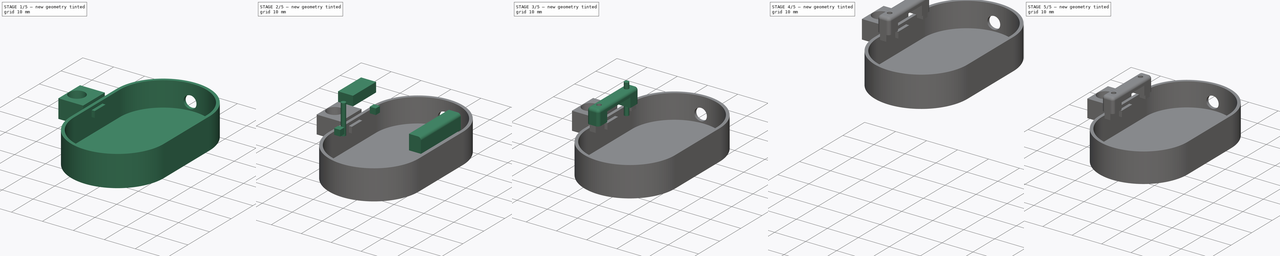
[diagram: build sequence overview — one tinted view per stage of 5, left to right]
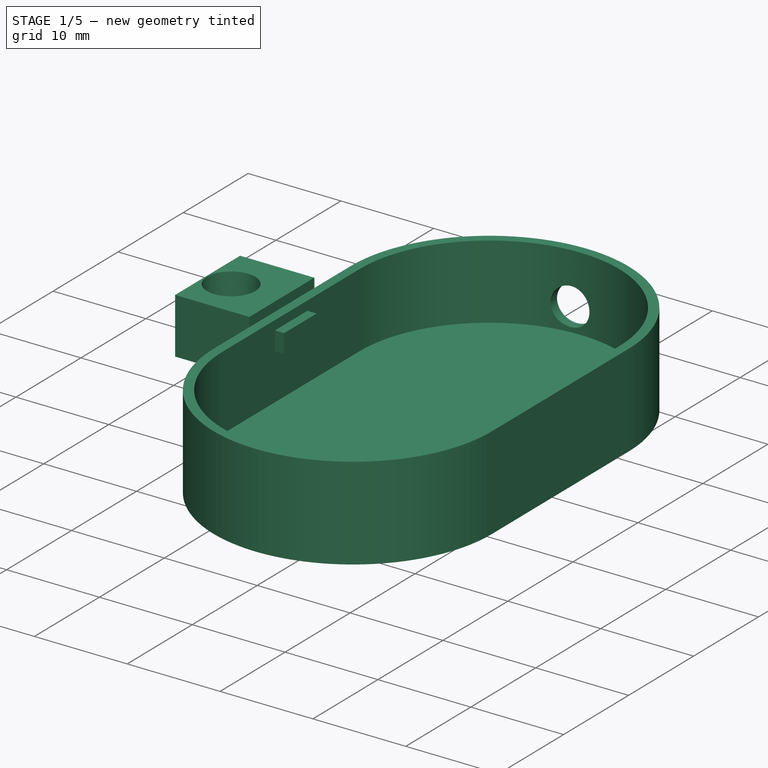
[diagram: stage 1 of 5 — iso view after this stage's code; geometry added in this stage tinted green]
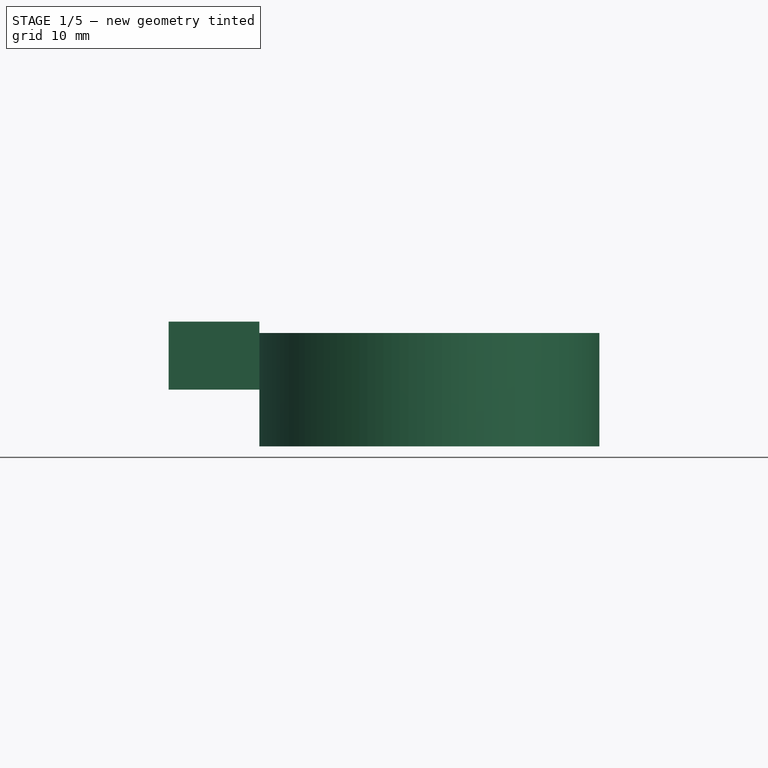
[diagram: stage 1 of 5 — front view after this stage's code; geometry added in this stage tinted green]
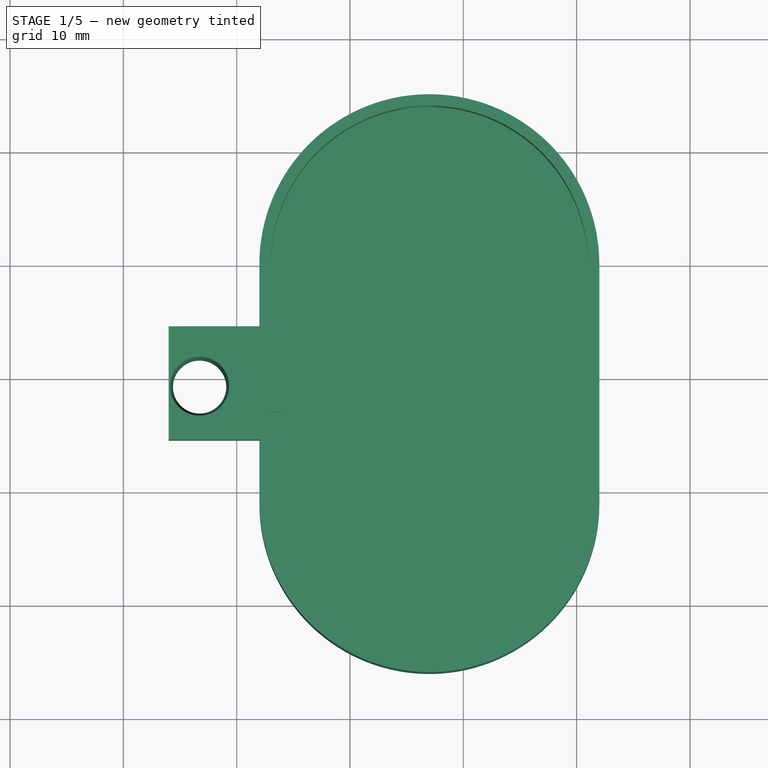
[diagram: stage 1 of 5 — top view after this stage's code; geometry added in this stage tinted green]
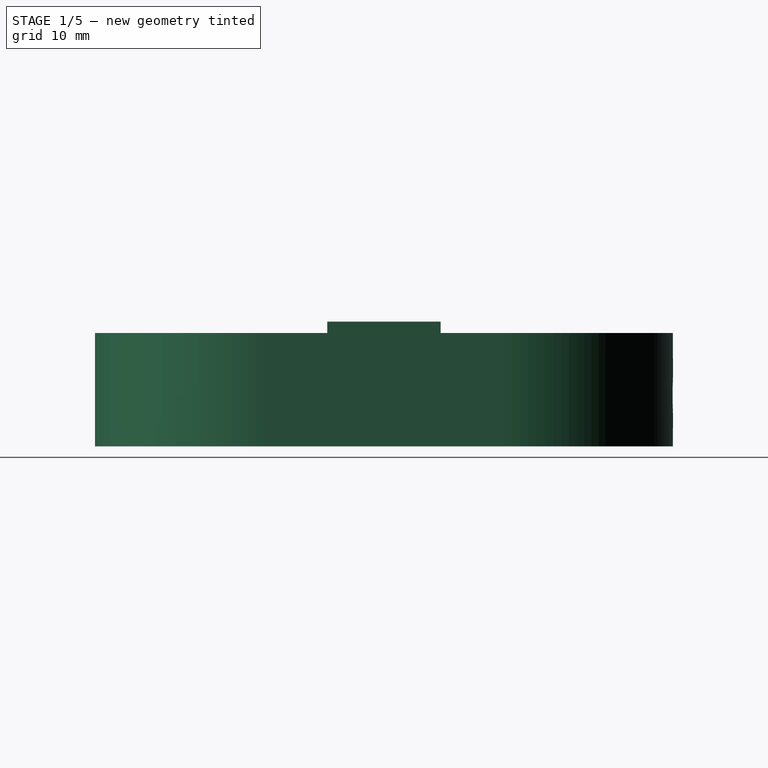
[diagram: stage 1 of 5 — right view after this stage's code; geometry added in this stage tinted green]
FCSTD DOCUMENT  (FreeCAD 0.16RUnknown)
Label: Diseño_para_Imprimir
License: All rights reserved
LicenseURL: http://en.wikipedia.org/wiki/All_rights_reserved
objects: Part::Feature×12, Part::Box×7, Part::Cut×6, Part::Cylinder×6, Part::MultiFuse×6, Part::Fillet×4, Part::Helix×1, Sketcher::SketchObject×1, Part::Sweep×1
note: 44 computed .brp shape members not serialized (recipe doc carries the construction recipe); baked Part::Feature solids carry a one-line shape summary decoded from their .brp

FEATURE [Part::Box] Box033  label="Cubo033"
  Height = 8
  Length = 6
  Placement = pos=(-13.5,-8,-5) rot=(0,1,0;1.5708rad)
  Width = 10
FEATURE [Part::Box] Box073  label="Cubo073"
  Height = 2
  Length = 2
  Placement = pos=(-28,57,41) rot=(0,0,1;0rad)
  Width = 5
FEATURE [Part::Feature] Part__Feature010  label="Agujero para rosca"
  Placement = pos=(-399.5,-80.5,-90) rot=(0,0,1;0rad)
  shape: bbox 5.23 x 5.23 x 6.4 mm, 6 faces (baked)
FEATURE [Part::Cut] Cut096004
  Base = -> Box033
  Placement = pos=(-22.5,62.5,50) rot=(0,0,1;0rad)
  Tool = -> Part__Feature010
FEATURE [Part::Feature] Fusion002019001  label="Fusion002044004"
  shape: bbox 38 x 11 x 3.2 mm, 14 faces (baked)
FEATURE [Part::Box] Box074  label="Cubo074"
  Height = 2
  Length = 2
  Placement = pos=(-28,57,41) rot=(0,0,1;0rad)
  Width = 5
FEATURE [Part::Cut] Cut096005
  Base = -> Cut093001
  Tool = -> Box073
FEATURE [Part::MultiFuse] Fusion002044003  label="Fusion002044005"
  Shapes = -> [Cut096004,Box074]
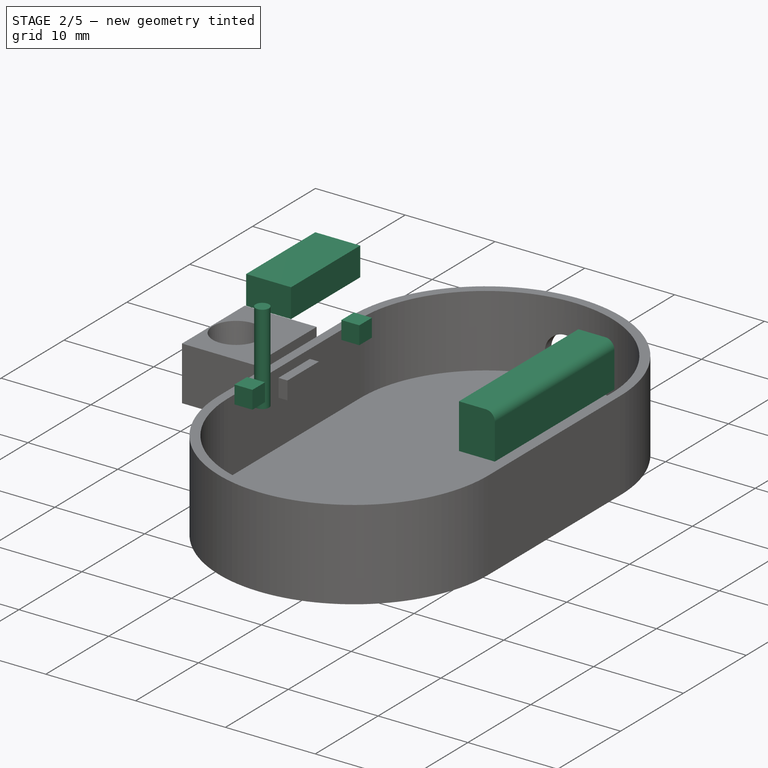
[diagram: stage 2 of 5 — iso view after this stage's code; geometry added in this stage tinted green]
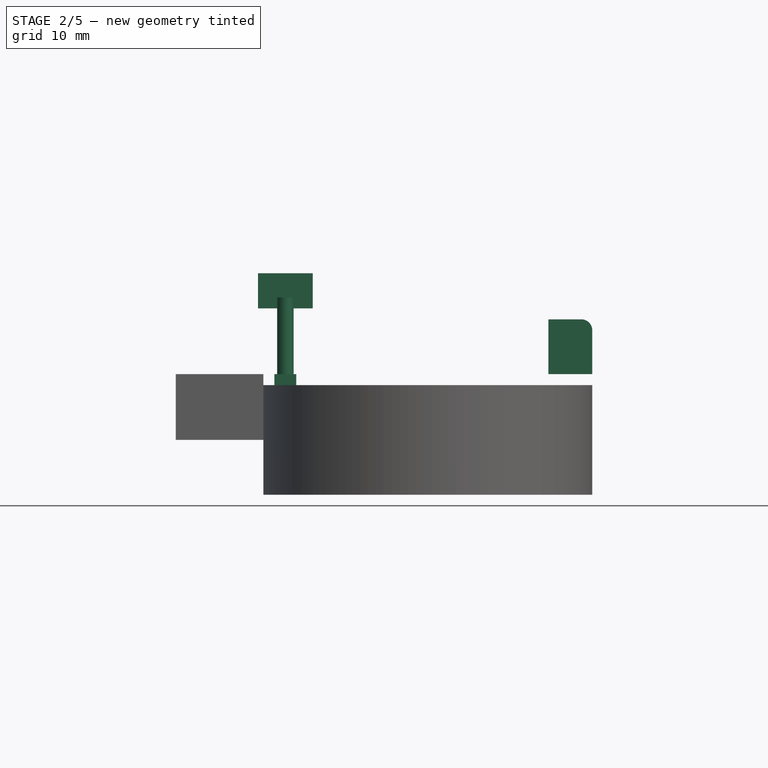
[diagram: stage 2 of 5 — front view after this stage's code; geometry added in this stage tinted green]
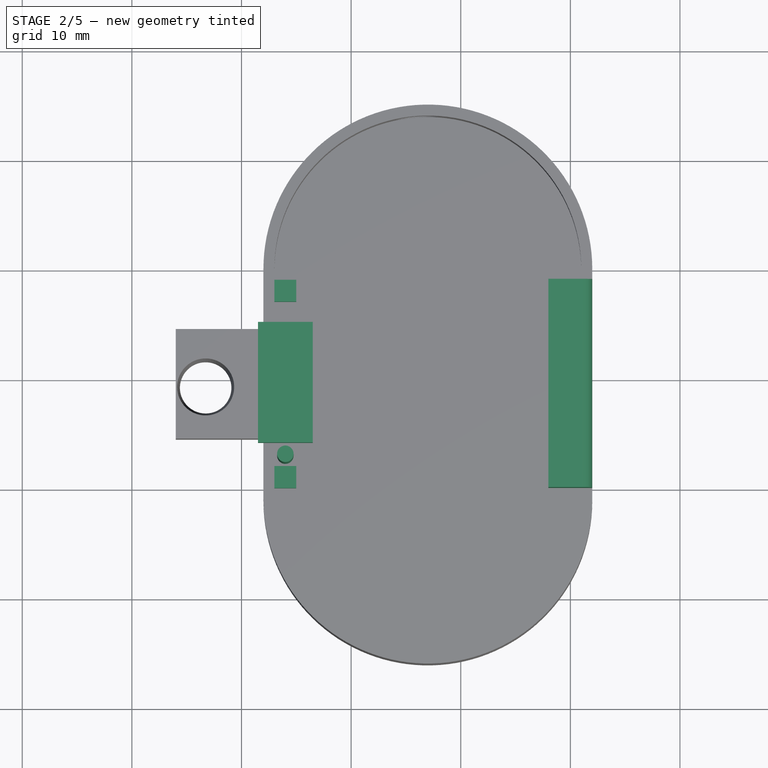
[diagram: stage 2 of 5 — top view after this stage's code; geometry added in this stage tinted green]
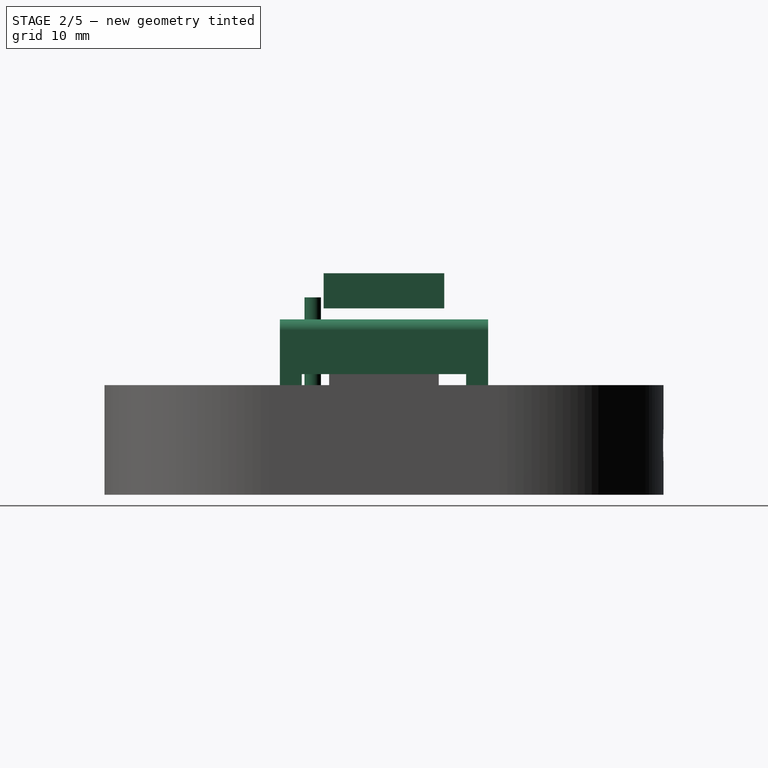
[diagram: stage 2 of 5 — right view after this stage's code; geometry added in this stage tinted green]
FEATURE [Part::Box] Box003  label="Cubo003"
  Height = 5
  Length = 4
  Placement = pos=(-2,50,45) rot=(0,0,1;0rad)
  Width = 19
FEATURE [Part::Fillet] Fillet
  Base = -> Box003
  Edges = 1 edges r=1: [Edge6]
FEATURE [Part::Box] Box038  label="Cubo038"
  Height = 3.2
  Length = 5
  Placement = pos=(-28.5,54,51) rot=(0,0,1;0rad)
  Width = 11
FEATURE [Part::Cylinder] Cylinder037  label="Cilindro037"
  Angle = 360
  Height = 10
  Placement = pos=(-26,53,42) rot=(0,0,1;0rad)
  Radius = 0.75
FEATURE [Part::Feature] Cut096001  label="Cut097"
  shape: bbox 39 x 8 x 2.545 mm, 19 faces (baked)
FEATURE [Part::Feature] Fusion002040001  label="Fusion002045"
  shape: bbox 30 x 51 x 3 mm, 18 faces (baked)
FEATURE [Part::Feature] Fusion002044001  label="Fusion002046"
  shape: bbox 20 x 43 x 6 mm, 48 faces (baked)
FEATURE [Part::Feature] Cut093001  label="Cut098"
  shape: bbox 30 x 51 x 10 mm, 12 faces (baked)
FEATURE [Part::Box] Box069  label="Cubo069"
  Height = 2
  Length = 2
  Placement = pos=(-27,67,43) rot=(0,0,1;0rad)
  Width = 2
FEATURE [Part::Box] Box070  label="Cubo070"
  Height = 2
  Length = 2
  Placement = pos=(-27,50,43) rot=(0,0,1;0rad)
  Width = 2
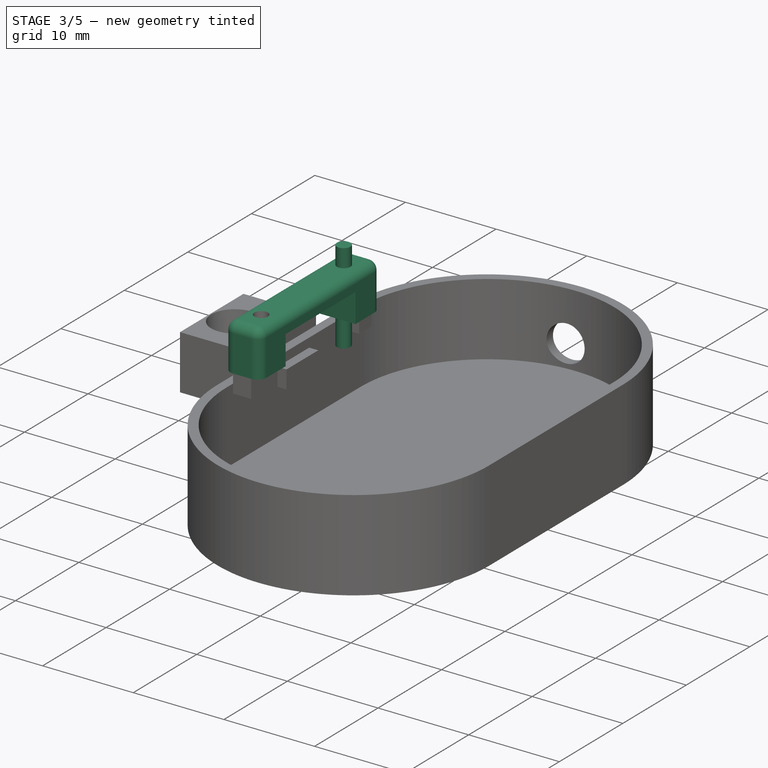
[diagram: stage 3 of 5 — iso view after this stage's code; geometry added in this stage tinted green]
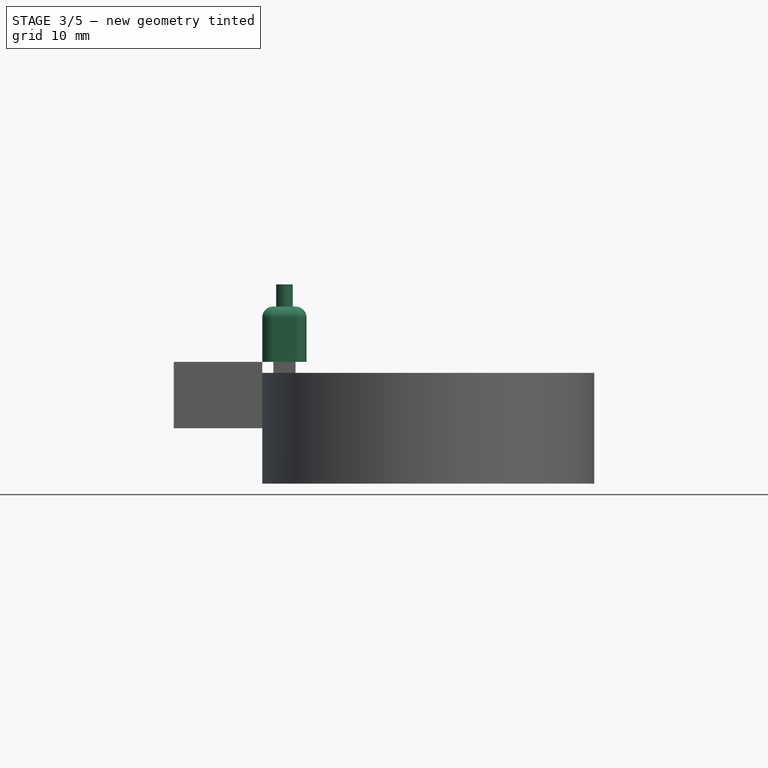
[diagram: stage 3 of 5 — front view after this stage's code; geometry added in this stage tinted green]
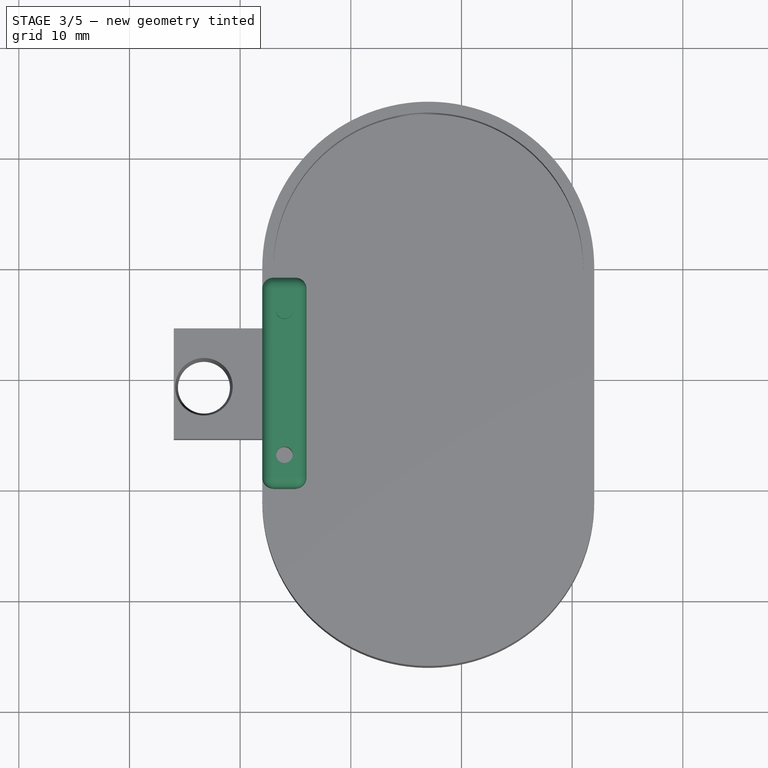
[diagram: stage 3 of 5 — top view after this stage's code; geometry added in this stage tinted green]
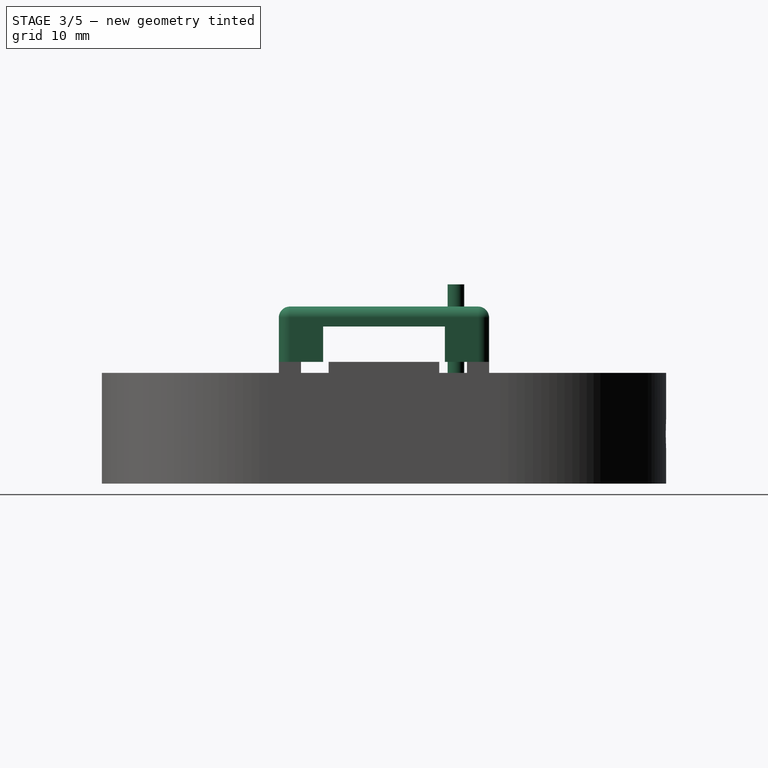
[diagram: stage 3 of 5 — right view after this stage's code; geometry added in this stage tinted green]
FEATURE [Part::Fillet] Fillet001
  Base = -> Fillet
  Edges = 1 edges r=1: [Edge15]
FEATURE [Part::Fillet] Fillet002
  Base = -> Fillet001
  Edges = 1 edges r=1: [Edge7]
FEATURE [Part::Fillet] Fillet003
  Base = -> Fillet002
  Edges = 1 edges r=1: [Edge3]
  Placement = pos=(-26,0,6) rot=(0,0,1;0rad)
FEATURE [Part::Cut] Cut055
  Base = -> Fillet003
  Placement = pos=(0,0,-6) rot=(0,0,1;0rad)
  Tool = -> Box038
FEATURE [Part::Cylinder] Cylinder040  label="Cilindro040"
  Angle = 360
  Height = 10
  Placement = pos=(-26,66,42) rot=(0,0,1;0rad)
  Radius = 0.75
FEATURE [Part::Cut] Cut057
  Base = -> Cut055
  Tool = -> Cylinder037
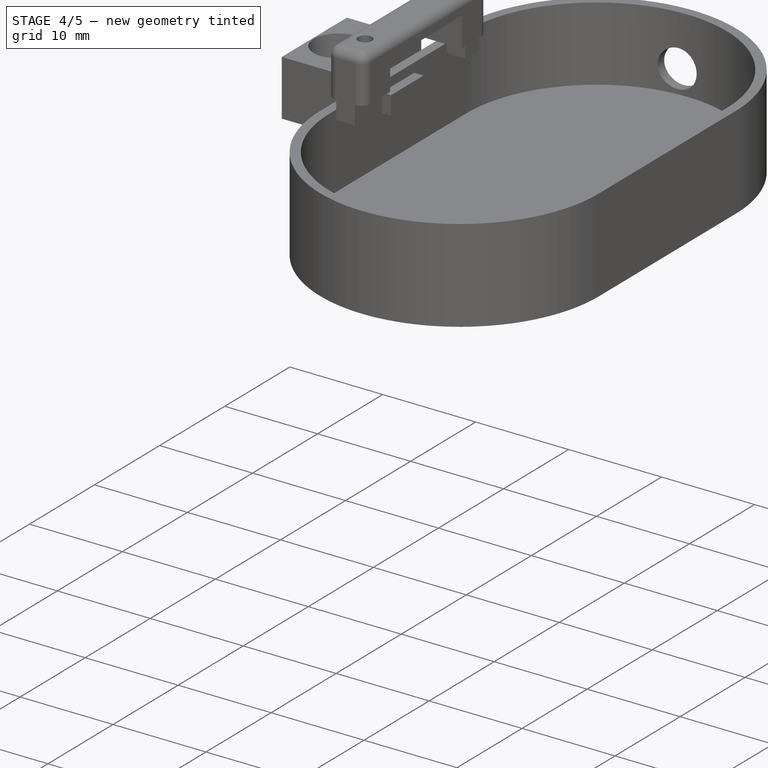
[diagram: stage 4 of 5 — iso view after this stage's code; geometry added in this stage tinted green]
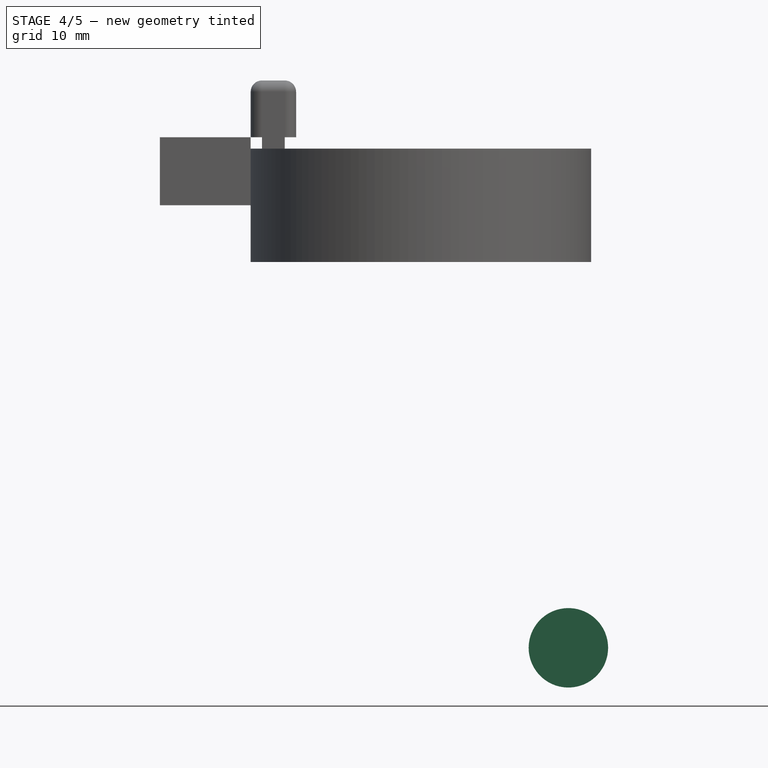
[diagram: stage 4 of 5 — front view after this stage's code; geometry added in this stage tinted green]
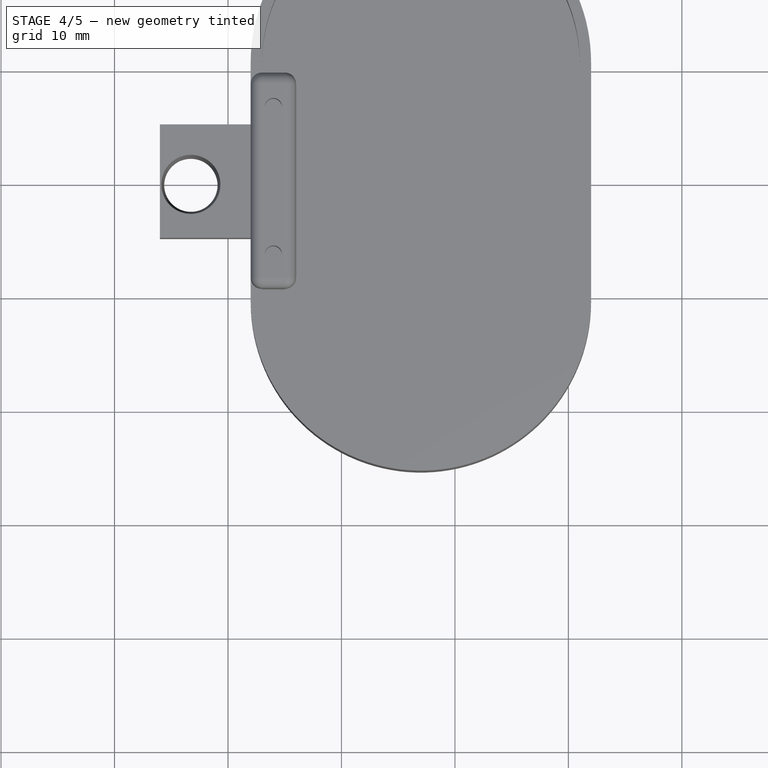
[diagram: stage 4 of 5 — top view after this stage's code; geometry added in this stage tinted green]
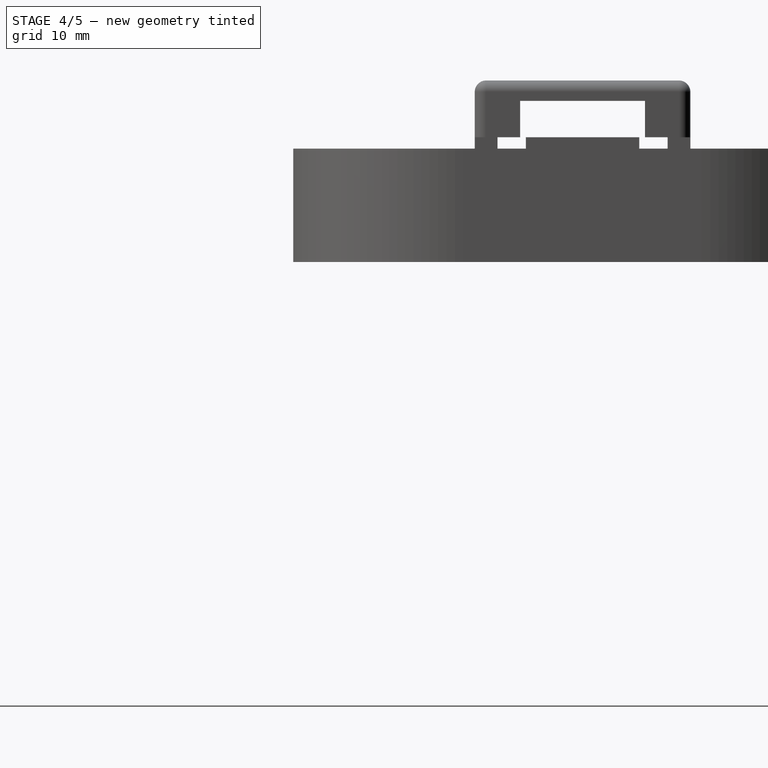
[diagram: stage 4 of 5 — right view after this stage's code; geometry added in this stage tinted green]
FEATURE [Part::Cut] Cut058
  Base = -> Cut057
  Tool = -> Cylinder040
FEATURE [Part::Cylinder] Cylinder052  label="Cilindro052"
  Angle = 360
  Height = 1
  Placement = pos=(0,6,0) rot=(1,0,0;1.5708rad)
  Radius = 3
FEATURE [Part::Cylinder] Cylinder053  label="Cilindro053"
  Angle = 360
  Height = 3
  Placement = pos=(0,0,0) rot=(1,0,0;1.5708rad)
  Radius = 2.8
FEATURE [Part::Cylinder] Cylinder054  label="Cilindro054"
  Angle = 360
  Height = 3
  Placement = pos=(0,0,0) rot=(1,0,0;1.5708rad)
  Radius = 3.5
FEATURE [Part::Cut] Cut094
  Base = -> Cylinder054
  Placement = pos=(0,2,0) rot=(0,0,1;0rad)
  Tool = -> Cylinder053
FEATURE [Part::MultiFuse] Fusion002044002
  Shapes = -> [Cut058,Box069,Box070]
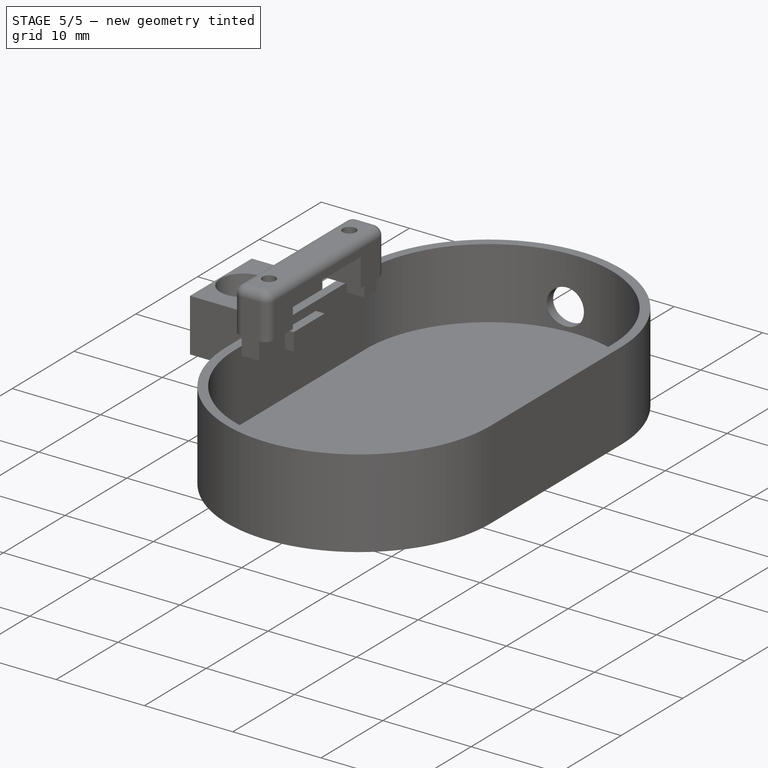
[diagram: stage 5 of 5 — iso view after this stage's code; geometry added in this stage tinted green]
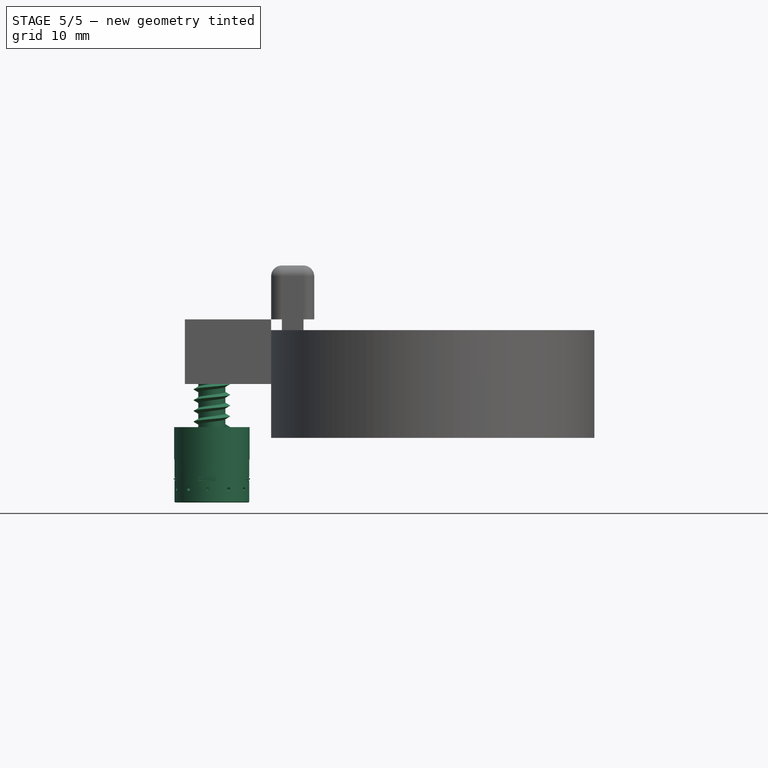
[diagram: stage 5 of 5 — front view after this stage's code; geometry added in this stage tinted green]
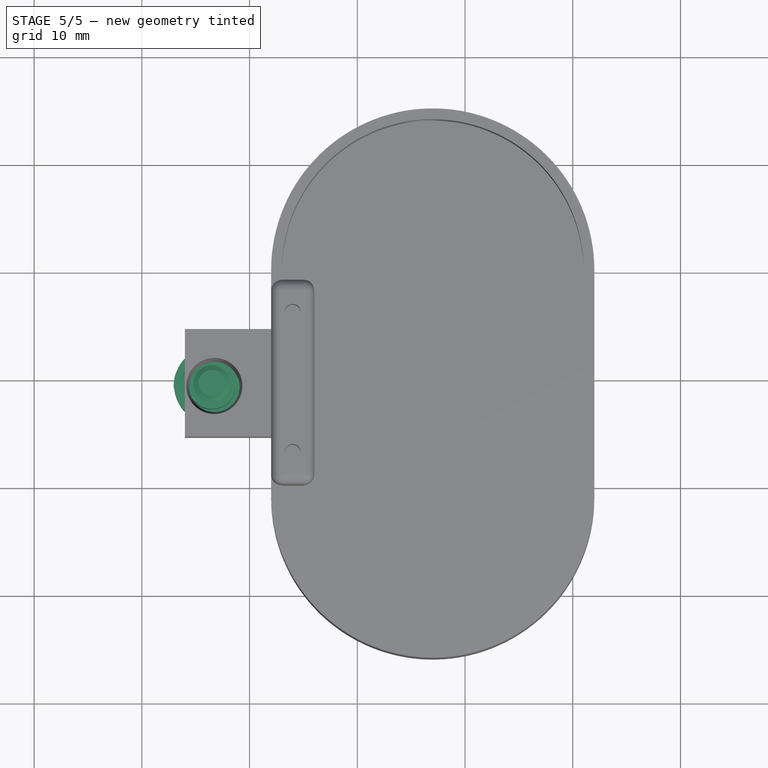
[diagram: stage 5 of 5 — top view after this stage's code; geometry added in this stage tinted green]
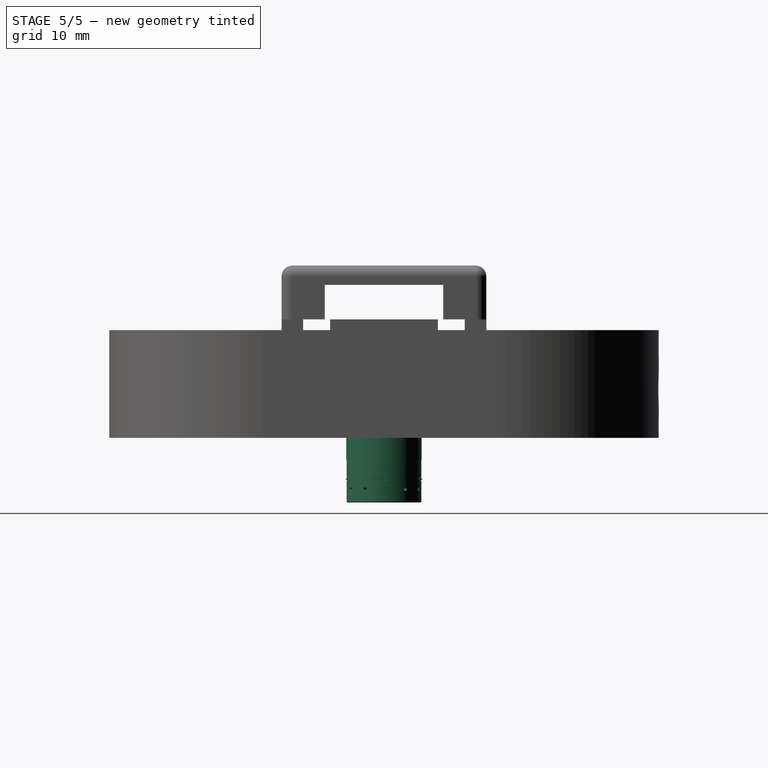
[diagram: stage 5 of 5 — right view after this stage's code; geometry added in this stage tinted green]
FEATURE [Part::Helix] Helix  label="Espiral"
  Angle = 0
  Height = 7
  LocalCoord = 0
  Pitch = 1
  Radius = 1.25
  Style = 1
FEATURE [Sketcher::SketchObject] Sketch
  Placement = pos=(0,0,0) rot=(1,0,0;1.5708rad)
  sketch-geometry (3):
    g0: LineSegment StartX=1.25 StartY=-0.259808 StartZ=0 EndX=1.25 EndY=0.259808 EndZ=0
    g1: LineSegment StartX=1.25 StartY=0.259808 StartZ=0 EndX=1.7 EndY=0 EndZ=0
    g2: LineSegment StartX=1.25 StartY=-0.259808 StartZ=0 EndX=1.7 EndY=0 EndZ=0
  constraints (9):
    c: Vertical(g0)
    c: Coincident(g1,g0)
    c: PointOnObject(g1,g-1)
    c: Coincident(g2,g0)
    c: Coincident(g2,g1)
    c: Equal(g1,g2)
    c: Angle(g1,g2) = 1.0472
    c: DistanceX(g-1,g0) = 1.25
    c: DistanceX(g-1,g1) = 1.7
FEATURE [Part::Sweep] Sweep027
  Frenet = true
  Placement = pos=(0,0,2) rot=(0,0,1;0rad)
  Sections = -> [Sketch]
  Solid = true
  Spine = -> Helix
  Transition = 1
FEATURE [Part::Cylinder] Cylinder051  label="Cilindro051"
  Angle = 360
  Height = 14
  Placement = pos=(0,0,1.5) rot=(0,0,1;0rad)
  Radius = 1.26
FEATURE [Part::Feature] Part__Feature009  label="COMPOUND002"
  shape: bbox 4.458 x 5.5 x 4.458 mm, 71 faces (baked)
FEATURE [Part::Feature] Part__Feature007  label="COMPOUND"
  shape: bbox 7.506 x 4 x 7.506 mm, 64 faces (baked)
FEATURE [Part::MultiFuse] Fusion002041
  Shapes = -> [Part__Feature007,Part__Feature009]
FEATURE [Part::MultiFuse] Fusion002042
  Placement = pos=(0,-10,0) rot=(-1,0,0;1.5708rad)
  Shapes = -> [Cylinder051,Sweep027]
FEATURE [Part::Feature] Part__Feature001  label="Component002"
  shape: bbox 0.3046 x 0.1319 x 1.53 mm, 6 faces (baked)
FEATURE [Part::Feature] Part__Feature002  label="Component003"
  shape: bbox 1.53 x 0.1319 x 0.3046 mm, 6 faces (baked)
FEATURE [Part::Feature] Part__Feature003  label="Component004"
  shape: bbox 0.3046 x 0.1319 x 1.53 mm, 6 faces (baked)
FEATURE [Part::Feature] Part__Feature004  label="Component005"
  shape: bbox 1.53 x 0.1319 x 0.3046 mm, 6 faces (baked)
FEATURE [Part::MultiFuse] Fusion002
  Shapes = -> [Part__Feature001,Part__Feature002,Part__Feature003,Part__Feature004,Cylinder052,Fusion002041,Fusion002042]
FEATURE [Part::MultiFuse] Fusion003
  Placement = pos=(-33.5,59.5,34) rot=(-1,0,0;1.5708rad)
  Shapes = -> [Cut094,Fusion002]
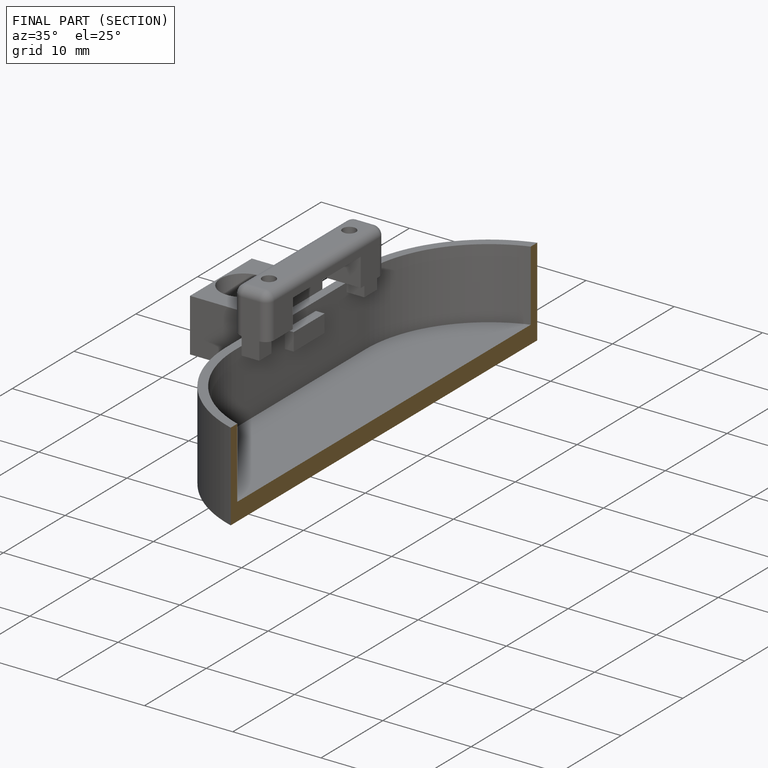
[diagram: finished part — half-section view (interior)]
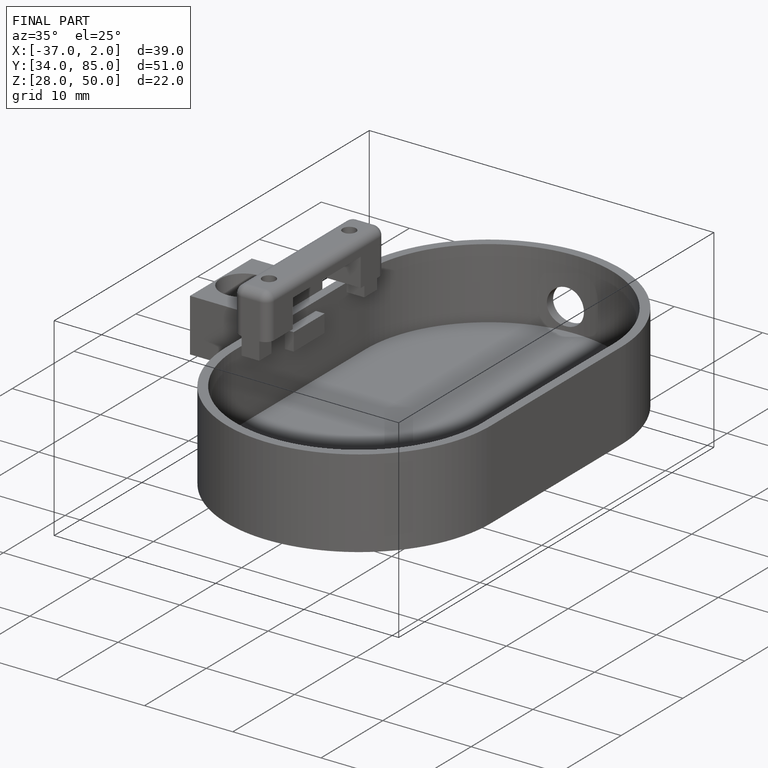
[diagram: finished part — iso view with bounding-box wireframe]
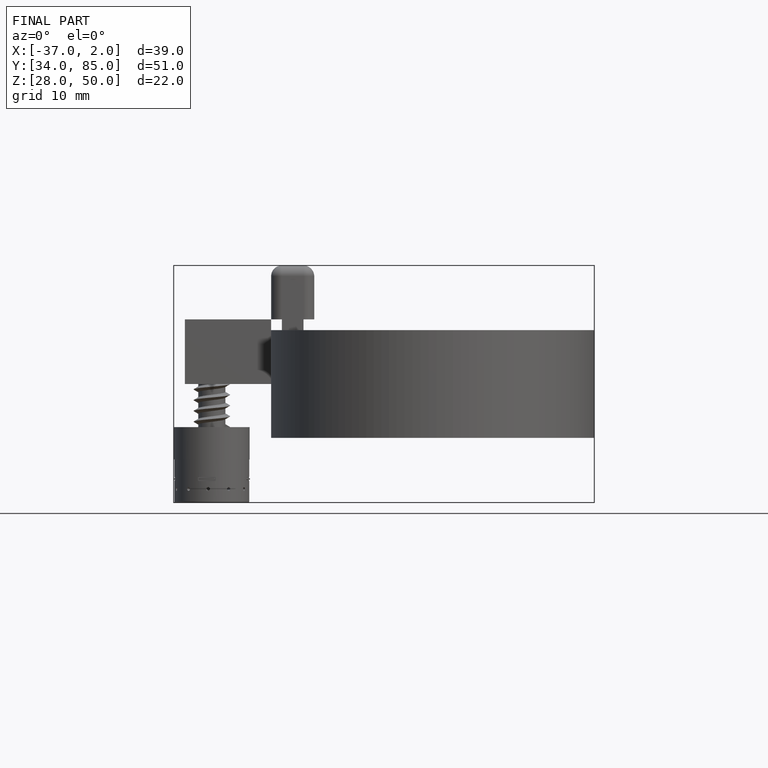
[diagram: finished part — front view with bounding-box wireframe]
